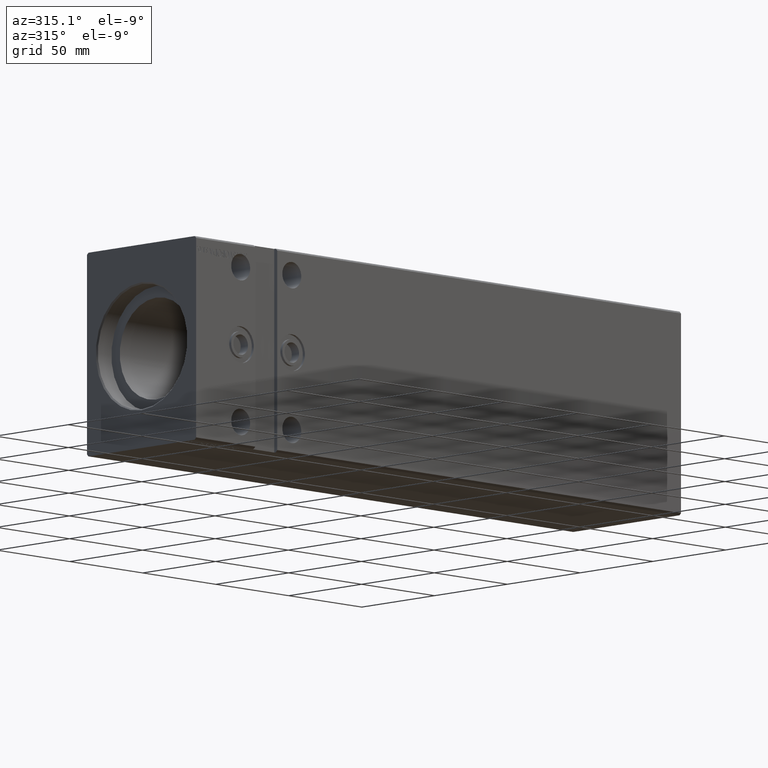
[diagram: clean part render]
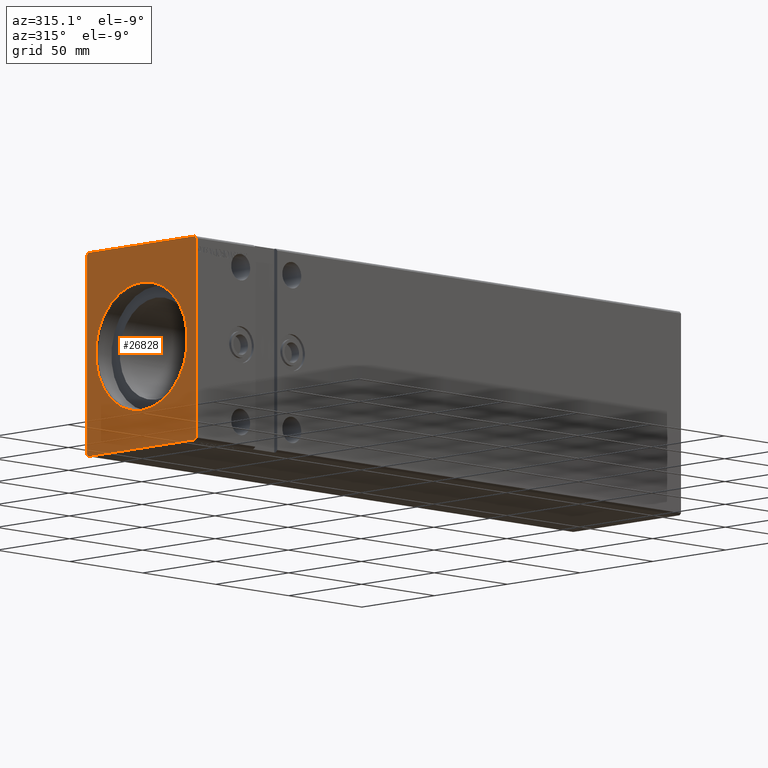
[diagram: same view with one face highlighted and labeled with its STEP entity id]
A machine part, auxiliary view. The second image highlights one B-rep face of the part: STEP entity #26828.
In plain terms, the highlighted planar face has unit normal (1, 0, 0).
Its self-contained STEP definition (entity closure, byte-faithful):
#27 = ORIENTED_EDGE ( 'NONE', *, *, #27940, .T. ) ;
#213 = DIRECTION ( 'NONE',  ( 0.000000000000000000, -0.7071067811865474617, -0.7071067811865474617 ) ) ;
#1689 = LINE ( 'NONE', #23935, #16168 ) ;
#1692 = CIRCLE ( 'NONE', #24733, 31.45000000000008811 ) ;
#2301 = CARTESIAN_POINT ( 'NONE',  ( 0.000000000000000000, 37.50000000000000711, -49.00000000000000000 ) ) ;
#3119 = DIRECTION ( 'NONE',  ( 0.000000000000000000, 0.000000000000000000, 1.000000000000000000 ) ) ;
#3678 = FACE_BOUND ( 'NONE', #29968, .T. ) ;
#3764 = EDGE_CURVE ( 'NONE', #13632, #24630, #15683, .T. ) ;
#4261 = VERTEX_POINT ( 'NONE', #13869 ) ;
#4383 = DIRECTION ( 'NONE',  ( 0.000000000000000000, 0.7071067811865474617, 0.7071067811865474617 ) ) ;
#4401 = ORIENTED_EDGE ( 'NONE', *, *, #3764, .F. ) ;
#4661 = VECTOR ( 'NONE', #29920, 1000.000000000000000 ) ;
#5017 = ORIENTED_EDGE ( 'NONE', *, *, #22273, .F. ) ;
#5437 = VECTOR ( 'NONE', #213, 1000.000000000000114 ) ;
#5574 = CARTESIAN_POINT ( 'NONE',  ( 0.000000000000000000, -37.50000000000001421, -49.00000000000000000 ) ) ;
#6063 = CARTESIAN_POINT ( 'NONE',  ( 0.000000000000000000, -36.50000000000000711, -50.00000000000000000 ) ) ;
#6124 = CARTESIAN_POINT ( 'NONE',  ( 0.000000000000000000, 37.50000000000000711, 49.00000000000000000 ) ) ;
#6339 = VERTEX_POINT ( 'NONE', #12629 ) ;
#6665 = DIRECTION ( 'NONE',  ( 0.000000000000000000, 1.000000000000000000, 0.000000000000000000 ) ) ;
#6767 = FACE_OUTER_BOUND ( 'NONE', #20451, .T. ) ;
#7153 = LINE ( 'NONE', #23019, #30412 ) ;
#7343 = ORIENTED_EDGE ( 'NONE', *, *, #15845, .F. ) ;
#7582 = DIRECTION ( 'NONE',  ( 1.000000000000000000, 0.000000000000000000, 0.000000000000000000 ) ) ;
#7715 = CARTESIAN_POINT ( 'NONE',  ( 0.000000000000000000, 37.50000000000000711, 49.00000000000000000 ) ) ;
#7919 = LINE ( 'NONE', #7715, #29895 ) ;
#8853 = ORIENTED_EDGE ( 'NONE', *, *, #32772, .F. ) ;
#8906 = CARTESIAN_POINT ( 'NONE',  ( 0.000000000000000000, 0.000000000000000000, 31.45000000000008811 ) ) ;
#9398 = ORIENTED_EDGE ( 'NONE', *, *, #40386, .T. ) ;
#9697 = CIRCLE ( 'NONE', #29425, 31.45000000000008811 ) ;
#10835 = EDGE_CURVE ( 'NONE', #40393, #11401, #28754, .T. ) ;
#11401 = VERTEX_POINT ( 'NONE', #5574 ) ;
#12198 = CARTESIAN_POINT ( 'NONE',  ( 0.000000000000000000, 37.50000000000000711, -49.00000000000000000 ) ) ;
#12590 = CARTESIAN_POINT ( 'NONE',  ( 0.000000000000000000, -36.50000000000001421, 49.99999999999998579 ) ) ;
#12629 = CARTESIAN_POINT ( 'NONE',  ( 0.000000000000000000, -36.50000000000000711, -50.00000000000000000 ) ) ;
#12714 = VERTEX_POINT ( 'NONE', #28313 ) ;
#13195 = LINE ( 'NONE', #12590, #5437 ) ;
#13561 = CARTESIAN_POINT ( 'NONE',  ( 0.000000000000000000, 0.000000000000000000, 0.000000000000000000 ) ) ;
#13632 = VERTEX_POINT ( 'NONE', #2301 ) ;
#13754 = ORIENTED_EDGE ( 'NONE', *, *, #30048, .F. ) ;
#13869 = CARTESIAN_POINT ( 'NONE',  ( 0.000000000000000000, -36.50000000000001421, 49.99999999999998579 ) ) ;
#15140 = VECTOR ( 'NONE', #3119, 1000.000000000000000 ) ;
#15395 = EDGE_CURVE ( 'NONE', #4261, #40393, #13195, .T. ) ;
#15683 = LINE ( 'NONE', #12198, #15140 ) ;
#15845 = EDGE_CURVE ( 'NONE', #12714, #4261, #7153, .T. ) ;
#16168 = VECTOR ( 'NONE', #4383, 1000.000000000000114 ) ;
#16448 = PLANE ( 'NONE',  #35206 ) ;
#16643 = DIRECTION ( 'NONE',  ( 0.000000000000000000, 0.000000000000000000, -1.000000000000000000 ) ) ;
#17050 = DIRECTION ( 'NONE',  ( 0.000000000000000000, 0.000000000000000000, -1.000000000000000000 ) ) ;
#17363 = CARTESIAN_POINT ( 'NONE',  ( 0.000000000000000000, -37.50000000000001421, 48.99999999999998579 ) ) ;
#18065 = VERTEX_POINT ( 'NONE', #35207 ) ;
#18411 = EDGE_CURVE ( 'NONE', #24630, #12714, #7919, .T. ) ;
#19740 = VERTEX_POINT ( 'NONE', #33781 ) ;
#20131 = CARTESIAN_POINT ( 'NONE',  ( 0.000000000000000000, 0.000000000000000000, 0.000000000000000000 ) ) ;
#20451 = EDGE_LOOP ( 'NONE', ( #26085, #4401, #5017, #13754, #8853, #28970, #25144, #7343 ) ) ;
#22045 = VECTOR ( 'NONE', #23212, 1000.000000000000114 ) ;
#22273 = EDGE_CURVE ( 'NONE', #19740, #13632, #1689, .T. ) ;
#22430 = DIRECTION ( 'NONE',  ( 0.000000000000000000, 0.000000000000000000, -1.000000000000000000 ) ) ;
#22817 = DIRECTION ( 'NONE',  ( 0.000000000000000000, -1.000000000000000000, -1.901066822988281457E-16 ) ) ;
#22835 = DIRECTION ( 'NONE',  ( 1.000000000000000000, 0.000000000000000000, 0.000000000000000000 ) ) ;
#23019 = CARTESIAN_POINT ( 'NONE',  ( 0.000000000000000000, 36.50000000000000711, 50.00000000000000000 ) ) ;
#23212 = DIRECTION ( 'NONE',  ( 0.000000000000000000, 0.7071067811865500152, -0.7071067811865451302 ) ) ;
#23935 = CARTESIAN_POINT ( 'NONE',  ( 0.000000000000000000, 36.50000000000000711, -50.00000000000000000 ) ) ;
#24630 = VERTEX_POINT ( 'NONE', #6124 ) ;
#24733 = AXIS2_PLACEMENT_3D ( 'NONE', #20131, #29607, #16643 ) ;
#25144 = ORIENTED_EDGE ( 'NONE', *, *, #15395, .F. ) ;
#26085 = ORIENTED_EDGE ( 'NONE', *, *, #18411, .F. ) ;
#26828 = ADVANCED_FACE ( 'NONE', ( #3678, #6767 ), #16448, .F. ) ;
#27940 = EDGE_CURVE ( 'NONE', #30139, #18065, #1692, .T. ) ;
#28313 = CARTESIAN_POINT ( 'NONE',  ( 0.000000000000000000, 36.50000000000000711, 50.00000000000000000 ) ) ;
#28754 = LINE ( 'NONE', #17363, #4661 ) ;
#28970 = ORIENTED_EDGE ( 'NONE', *, *, #10835, .F. ) ;
#29010 = CARTESIAN_POINT ( 'NONE',  ( 0.000000000000000000, 0.000000000000000000, 0.000000000000000000 ) ) ;
#29425 = AXIS2_PLACEMENT_3D ( 'NONE', #13561, #7582, #17050 ) ;
#29607 = DIRECTION ( 'NONE',  ( 1.000000000000000000, 0.000000000000000000, 0.000000000000000000 ) ) ;
#29895 = VECTOR ( 'NONE', #33235, 1000.000000000000114 ) ;
#29920 = DIRECTION ( 'NONE',  ( 0.000000000000000000, 0.000000000000000000, -1.000000000000000000 ) ) ;
#29968 = EDGE_LOOP ( 'NONE', ( #27, #9398 ) ) ;
#30048 = EDGE_CURVE ( 'NONE', #6339, #19740, #34279, .T. ) ;
#30139 = VERTEX_POINT ( 'NONE', #8906 ) ;
#30350 = VECTOR ( 'NONE', #6665, 1000.000000000000000 ) ;
#30412 = VECTOR ( 'NONE', #22817, 1000.000000000000000 ) ;
#32079 = CARTESIAN_POINT ( 'NONE',  ( 0.000000000000000000, -37.50000000000001421, 48.99999999999998579 ) ) ;
#32463 = CARTESIAN_POINT ( 'NONE',  ( 0.000000000000000000, -37.50000000000001421, -49.00000000000000000 ) ) ;
#32772 = EDGE_CURVE ( 'NONE', #11401, #6339, #35570, .T. ) ;
#33235 = DIRECTION ( 'NONE',  ( 0.000000000000000000, -0.7071067811865474617, 0.7071067811865474617 ) ) ;
#33781 = CARTESIAN_POINT ( 'NONE',  ( 0.000000000000000000, 36.50000000000000711, -50.00000000000000000 ) ) ;
#34279 = LINE ( 'NONE', #6063, #30350 ) ;
#35206 = AXIS2_PLACEMENT_3D ( 'NONE', #29010, #22835, #22430 ) ;
#35207 = CARTESIAN_POINT ( 'NONE',  ( 0.000000000000000000, 3.851514183318436660E-15, -31.45000000000008811 ) ) ;
#35570 = LINE ( 'NONE', #32463, #22045 ) ;
#40386 = EDGE_CURVE ( 'NONE', #18065, #30139, #9697, .T. ) ;
#40393 = VERTEX_POINT ( 'NONE', #32079 ) ;